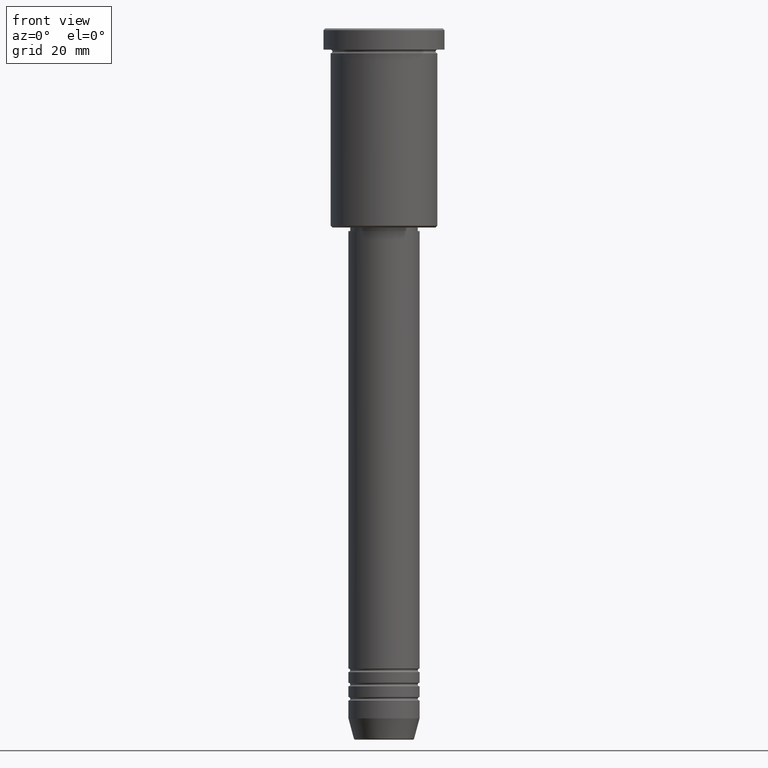
[diagram: clean part render]
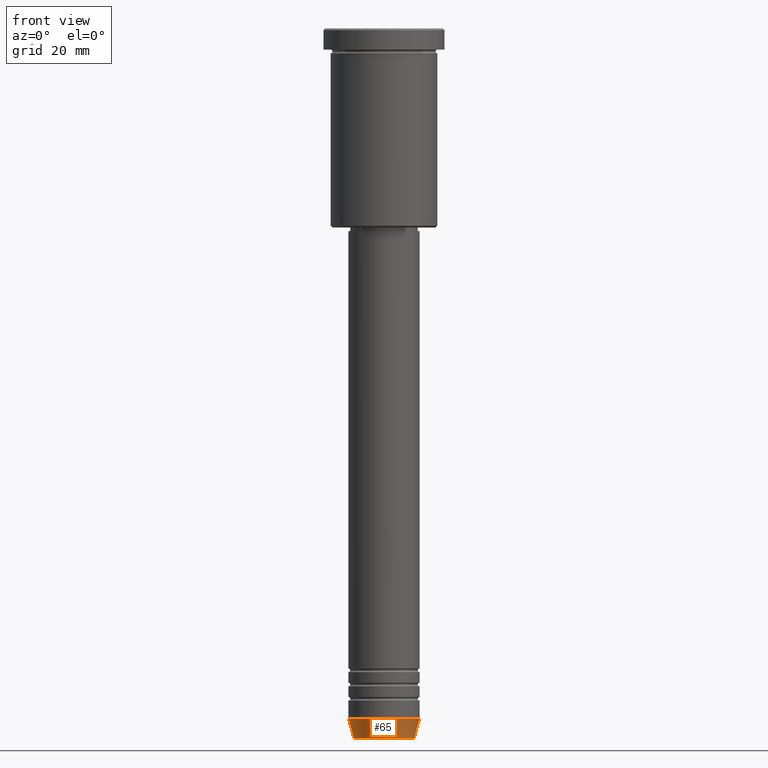
[diagram: same view with one face highlighted and labeled with its STEP entity id]
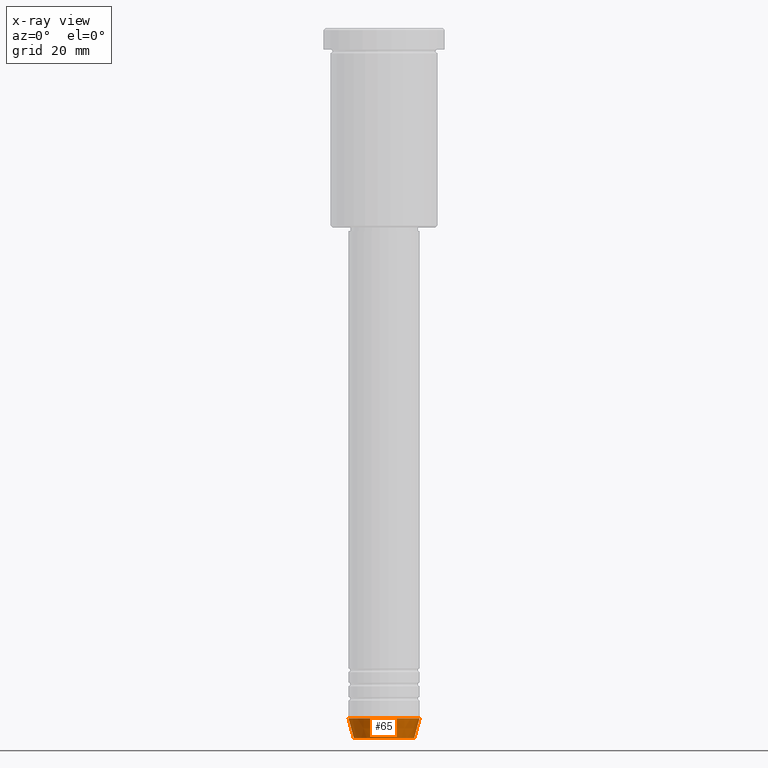
[diagram: x-ray of the same camera — body ghosted, the highlighted face saturated]
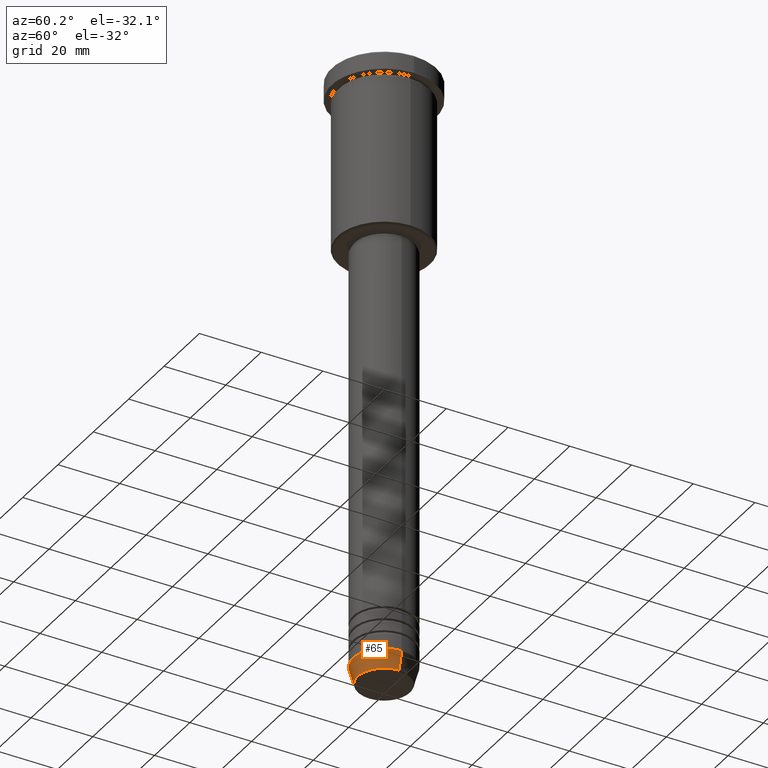
[diagram: same view with one face highlighted and labeled with its STEP entity id]
A machine part, front view. The second image highlights one B-rep face of the part: STEP entity #65.
The next image is the same camera in x-ray: the body ghosted, the highlighted face saturated — about 0% of this face is hidden behind the body in this view.
A second angle (auxiliary view) of the same face is appended — the face is thin or edge-on in the first view.
In plain terms, the highlighted conical surface has half-angle 15 deg.
Its self-contained STEP definition (entity closure, byte-faithful):
#65 = ADVANCED_FACE ( 'NONE', ( #736 ), #242, .T. ) ;
#68 = DIRECTION ( 'NONE',  ( -0.000000000000000000, -0.000000000000000000, 1.000000000000000000 ) ) ;
#69 = CARTESIAN_POINT ( 'NONE',  ( 8.491604264568326954, 0.000000000000000000, -199.6294095225512706 ) ) ;
#86 = VERTEX_POINT ( 'NONE', #809 ) ;
#193 = ORIENTED_EDGE ( 'NONE', *, *, #410, .F. ) ;
#197 = EDGE_CURVE ( 'NONE', #86, #769, #553, .T. ) ;
#200 = DIRECTION ( 'NONE',  ( 1.000000000000000000, 0.000000000000000000, 0.000000000000000000 ) ) ;
#242 = CONICAL_SURFACE ( 'NONE', #548, 10.00000000000000178, 0.2617993877991501850 ) ;
#258 = EDGE_CURVE ( 'NONE', #86, #932, #988, .T. ) ;
#276 = EDGE_LOOP ( 'NONE', ( #858, #841, #776, #193 ) ) ;
#310 = EDGE_CURVE ( 'NONE', #769, #581, #900, .T. ) ;
#329 = DIRECTION ( 'NONE',  ( 0.2588190451025214611, 0.000000000000000000, 0.9659258262890680902 ) ) ;
#339 = CARTESIAN_POINT ( 'NONE',  ( -10.00000000000000178, 1.224646799147353454E-15, -194.0000000000000284 ) ) ;
#357 = VECTOR ( 'NONE', #525, 1000.000000000000000 ) ;
#410 = EDGE_CURVE ( 'NONE', #932, #581, #1065, .T. ) ;
#525 = DIRECTION ( 'NONE',  ( -0.2588190451025214611, 3.169619151431773569E-17, 0.9659258262890680902 ) ) ;
#542 = CARTESIAN_POINT ( 'NONE',  ( 0.000000000000000000, 0.000000000000000000, -194.0000000000000284 ) ) ;
#548 = AXIS2_PLACEMENT_3D ( 'NONE', #542, #566, #639 ) ;
#553 = CIRCLE ( 'NONE', #957, 8.491604264568326954 ) ;
#566 = DIRECTION ( 'NONE',  ( -0.000000000000000000, -0.000000000000000000, 1.000000000000000000 ) ) ;
#581 = VERTEX_POINT ( 'NONE', #785 ) ;
#638 = CARTESIAN_POINT ( 'NONE',  ( 0.000000000000000000, 0.000000000000000000, -194.0000000000000284 ) ) ;
#639 = DIRECTION ( 'NONE',  ( 1.000000000000000000, 0.000000000000000000, 0.000000000000000000 ) ) ;
#665 = VECTOR ( 'NONE', #329, 1000.000000000000000 ) ;
#688 = CARTESIAN_POINT ( 'NONE',  ( -10.00000000000000178, 1.224646799147353454E-15, -194.0000000000000284 ) ) ;
#736 = FACE_OUTER_BOUND ( 'NONE', #276, .T. ) ;
#745 = DIRECTION ( 'NONE',  ( -0.000000000000000000, -0.000000000000000000, 1.000000000000000000 ) ) ;
#769 = VERTEX_POINT ( 'NONE', #69 ) ;
#776 = ORIENTED_EDGE ( 'NONE', *, *, #310, .T. ) ;
#785 = CARTESIAN_POINT ( 'NONE',  ( 10.00000000000000178, 0.000000000000000000, -194.0000000000000284 ) ) ;
#809 = CARTESIAN_POINT ( 'NONE',  ( -8.491604264568326954, 1.132284198685157767E-15, -199.6294095225512706 ) ) ;
#841 = ORIENTED_EDGE ( 'NONE', *, *, #197, .T. ) ;
#858 = ORIENTED_EDGE ( 'NONE', *, *, #258, .F. ) ;
#883 = DIRECTION ( 'NONE',  ( 1.000000000000000000, 0.000000000000000000, 0.000000000000000000 ) ) ;
#900 = LINE ( 'NONE', #1141, #665 ) ;
#932 = VERTEX_POINT ( 'NONE', #688 ) ;
#957 = AXIS2_PLACEMENT_3D ( 'NONE', #1056, #68, #883 ) ;
#958 = AXIS2_PLACEMENT_3D ( 'NONE', #638, #745, #200 ) ;
#988 = LINE ( 'NONE', #339, #357 ) ;
#1056 = CARTESIAN_POINT ( 'NONE',  ( 0.000000000000000000, 0.000000000000000000, -199.6294095225512706 ) ) ;
#1065 = CIRCLE ( 'NONE', #958, 10.00000000000000178 ) ;
#1141 = CARTESIAN_POINT ( 'NONE',  ( 10.00000000000000178, 0.000000000000000000, -194.0000000000000284 ) ) ;